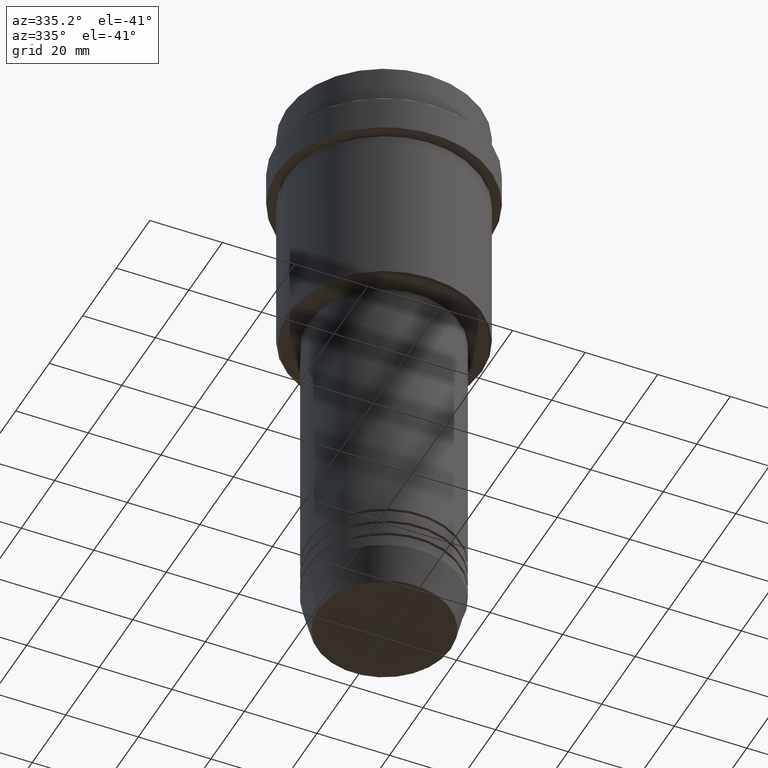
[diagram: clean part render]
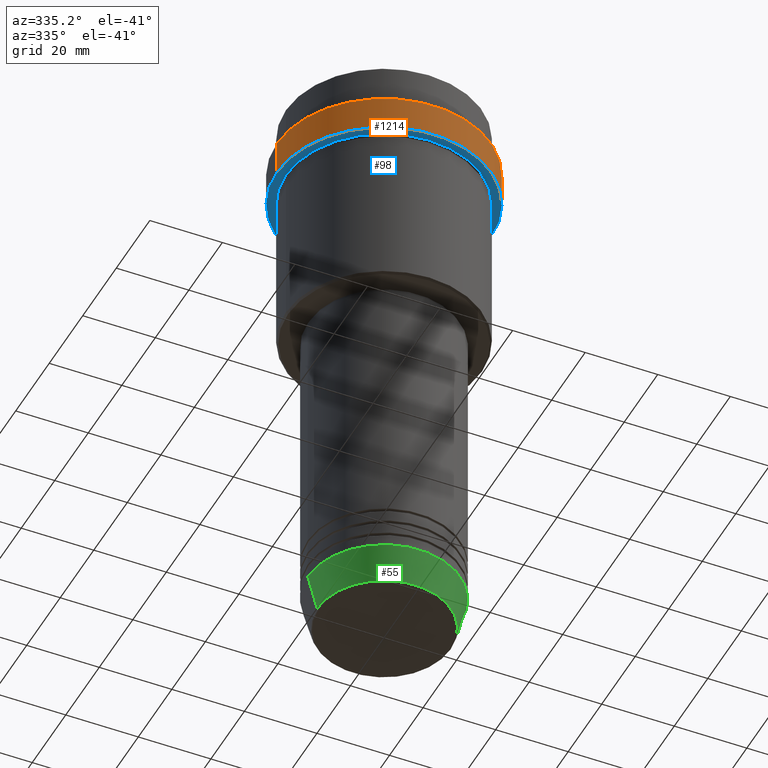
[diagram: same view with three faces highlighted in distinct colors, each labeled with its STEP entity id]
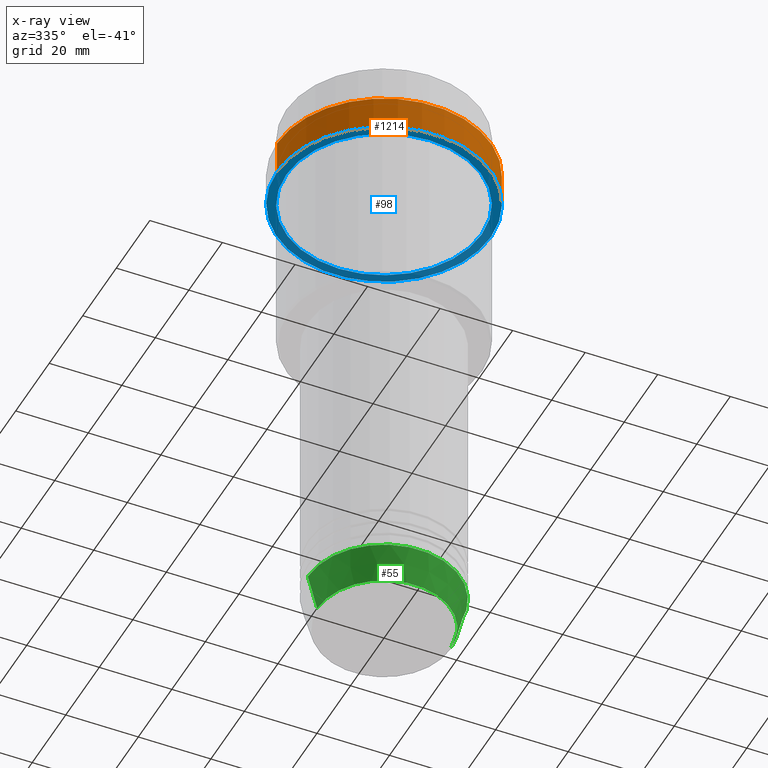
[diagram: x-ray of the same camera — body ghosted, the three highlighted faces saturated]
A machine part, auxiliary view with three faces highlighted in distinct colors.
The next image is the same camera in x-ray (body ghosted, the three faces saturated) — at least one of them is partly hidden behind the body in this view.
Their STEP definitions:

[orange] entity #1214 — the highlighted cylindrical surface (partial cylindrical patch) has radius 29.5 mm, axis along (-0, -0, 1).
#58 = CARTESIAN_POINT ( 'NONE',  ( -29.49999999999999645, 3.612708057484690815E-15, -21.99999999999999289 ) ) ;
#59 = CARTESIAN_POINT ( 'NONE',  ( 0.000000000000000000, 0.000000000000000000, -12.49999999999996270 ) ) ;
#72 = EDGE_CURVE ( 'NONE', #704, #559, #1209, .T. ) ;
#119 = EDGE_LOOP ( 'NONE', ( #254, #943, #577, #272 ) ) ;
#132 = DIRECTION ( 'NONE',  ( -0.000000000000000000, -0.000000000000000000, 1.000000000000000000 ) ) ;
#143 = EDGE_CURVE ( 'NONE', #704, #655, #265, .T. ) ;
#156 = CARTESIAN_POINT ( 'NONE',  ( 0.000000000000000000, 0.000000000000000000, -21.99999999999999289 ) ) ;
#177 = EDGE_CURVE ( 'NONE', #1090, #655, #432, .T. ) ;
#254 = ORIENTED_EDGE ( 'NONE', *, *, #143, .F. ) ;
#265 = LINE ( 'NONE', #1085, #1089 ) ;
#272 = ORIENTED_EDGE ( 'NONE', *, *, #177, .T. ) ;
#293 = DIRECTION ( 'NONE',  ( -0.000000000000000000, -0.000000000000000000, 1.000000000000000000 ) ) ;
#339 = DIRECTION ( 'NONE',  ( 1.000000000000000000, 0.000000000000000000, 0.000000000000000000 ) ) ;
#386 = DIRECTION ( 'NONE',  ( -0.000000000000000000, -0.000000000000000000, 1.000000000000000000 ) ) ;
#432 = CIRCLE ( 'NONE', #1311, 29.50000000000000000 ) ;
#549 = VECTOR ( 'NONE', #293, 1000.000000000000000 ) ;
#559 = VERTEX_POINT ( 'NONE', #654 ) ;
#577 = ORIENTED_EDGE ( 'NONE', *, *, #822, .T. ) ;
#592 = AXIS2_PLACEMENT_3D ( 'NONE', #156, #132, #339 ) ;
#597 = CARTESIAN_POINT ( 'NONE',  ( -29.50000000000000000, 3.612708057484691604E-15, -12.49999999999996270 ) ) ;
#618 = LINE ( 'NONE', #1278, #549 ) ;
#654 = CARTESIAN_POINT ( 'NONE',  ( 29.49999999999999645, 0.000000000000000000, -21.99999999999999289 ) ) ;
#655 = VERTEX_POINT ( 'NONE', #597 ) ;
#704 = VERTEX_POINT ( 'NONE', #58 ) ;
#717 = DIRECTION ( 'NONE',  ( -0.000000000000000000, -0.000000000000000000, 1.000000000000000000 ) ) ;
#736 = FACE_OUTER_BOUND ( 'NONE', #119, .T. ) ;
#822 = EDGE_CURVE ( 'NONE', #559, #1090, #618, .T. ) ;
#826 = DIRECTION ( 'NONE',  ( 0.000000000000000000, 0.000000000000000000, -1.000000000000000000 ) ) ;
#905 = AXIS2_PLACEMENT_3D ( 'NONE', #1173, #717, #1405 ) ;
#909 = CARTESIAN_POINT ( 'NONE',  ( 29.50000000000000000, 0.000000000000000000, -12.49999999999996270 ) ) ;
#943 = ORIENTED_EDGE ( 'NONE', *, *, #72, .T. ) ;
#1085 = CARTESIAN_POINT ( 'NONE',  ( -29.50000000000000000, 3.612708057484691604E-15, 0.000000000000000000 ) ) ;
#1089 = VECTOR ( 'NONE', #386, 1000.000000000000000 ) ;
#1090 = VERTEX_POINT ( 'NONE', #909 ) ;
#1173 = CARTESIAN_POINT ( 'NONE',  ( 0.000000000000000000, 0.000000000000000000, 0.000000000000000000 ) ) ;
#1209 = CIRCLE ( 'NONE', #592, 29.49999999999999645 ) ;
#1214 = ADVANCED_FACE ( 'NONE', ( #736 ), #1283, .T. ) ;
#1278 = CARTESIAN_POINT ( 'NONE',  ( 29.50000000000000000, 0.000000000000000000, 0.000000000000000000 ) ) ;
#1283 = CYLINDRICAL_SURFACE ( 'NONE', #905, 29.50000000000000000 ) ;
#1311 = AXIS2_PLACEMENT_3D ( 'NONE', #59, #826, #1364 ) ;
#1364 = DIRECTION ( 'NONE',  ( 1.000000000000000000, 0.000000000000000000, 0.000000000000000000 ) ) ;
#1405 = DIRECTION ( 'NONE',  ( 1.000000000000000000, 0.000000000000000000, 0.000000000000000000 ) ) ;

[blue] entity #98 — the highlighted planar face has unit normal (0, 0, -1).
#58 = CARTESIAN_POINT ( 'NONE',  ( -29.49999999999999645, 3.612708057484690815E-15, -21.99999999999999289 ) ) ;
#72 = EDGE_CURVE ( 'NONE', #704, #559, #1209, .T. ) ;
#89 = ORIENTED_EDGE ( 'NONE', *, *, #1362, .F. ) ;
#90 = CARTESIAN_POINT ( 'NONE',  ( -26.99999999999999645, 0.000000000000000000, -21.99999999999999289 ) ) ;
#98 = ADVANCED_FACE ( 'NONE', ( #471, #356 ), #465, .T. ) ;
#132 = DIRECTION ( 'NONE',  ( -0.000000000000000000, -0.000000000000000000, 1.000000000000000000 ) ) ;
#156 = CARTESIAN_POINT ( 'NONE',  ( 0.000000000000000000, 0.000000000000000000, -21.99999999999999289 ) ) ;
#168 = AXIS2_PLACEMENT_3D ( 'NONE', #1358, #1140, #1157 ) ;
#174 = AXIS2_PLACEMENT_3D ( 'NONE', #459, #429, #1195 ) ;
#284 = EDGE_CURVE ( 'NONE', #863, #1227, #477, .T. ) ;
#327 = CARTESIAN_POINT ( 'NONE',  ( 0.000000000000000000, 0.000000000000000000, -21.99999999999999289 ) ) ;
#339 = DIRECTION ( 'NONE',  ( 1.000000000000000000, 0.000000000000000000, 0.000000000000000000 ) ) ;
#356 = FACE_OUTER_BOUND ( 'NONE', #1080, .T. ) ;
#429 = DIRECTION ( 'NONE',  ( -0.000000000000000000, -0.000000000000000000, 1.000000000000000000 ) ) ;
#459 = CARTESIAN_POINT ( 'NONE',  ( 0.000000000000000000, 0.000000000000000000, -21.99999999999999289 ) ) ;
#465 = PLANE ( 'NONE',  #1182 ) ;
#471 = FACE_BOUND ( 'NONE', #1176, .T. ) ;
#477 = CIRCLE ( 'NONE', #168, 26.99999999999999645 ) ;
#559 = VERTEX_POINT ( 'NONE', #654 ) ;
#592 = AXIS2_PLACEMENT_3D ( 'NONE', #156, #132, #339 ) ;
#654 = CARTESIAN_POINT ( 'NONE',  ( 29.49999999999999645, 0.000000000000000000, -21.99999999999999289 ) ) ;
#656 = DIRECTION ( 'NONE',  ( 1.000000000000000000, 0.000000000000000000, 0.000000000000000000 ) ) ;
#675 = DIRECTION ( 'NONE',  ( 0.000000000000000000, 0.000000000000000000, -1.000000000000000000 ) ) ;
#704 = VERTEX_POINT ( 'NONE', #58 ) ;
#759 = DIRECTION ( 'NONE',  ( -0.000000000000000000, -0.000000000000000000, 1.000000000000000000 ) ) ;
#782 = CARTESIAN_POINT ( 'NONE',  ( 0.000000000000000000, 29.49999999999999645, -21.99999999999999289 ) ) ;
#863 = VERTEX_POINT ( 'NONE', #1178 ) ;
#897 = DIRECTION ( 'NONE',  ( -1.000000000000000000, 0.000000000000000000, -0.000000000000000000 ) ) ;
#906 = ORIENTED_EDGE ( 'NONE', *, *, #72, .F. ) ;
#998 = ORIENTED_EDGE ( 'NONE', *, *, #1384, .T. ) ;
#1080 = EDGE_LOOP ( 'NONE', ( #89, #906 ) ) ;
#1140 = DIRECTION ( 'NONE',  ( -0.000000000000000000, -0.000000000000000000, 1.000000000000000000 ) ) ;
#1157 = DIRECTION ( 'NONE',  ( -1.000000000000000000, 0.000000000000000000, 0.000000000000000000 ) ) ;
#1176 = EDGE_LOOP ( 'NONE', ( #998, #1406 ) ) ;
#1178 = CARTESIAN_POINT ( 'NONE',  ( 26.99999999999999645, 3.306546357697853339E-15, -21.99999999999999289 ) ) ;
#1182 = AXIS2_PLACEMENT_3D ( 'NONE', #782, #675, #897 ) ;
#1195 = DIRECTION ( 'NONE',  ( -1.000000000000000000, 0.000000000000000000, 0.000000000000000000 ) ) ;
#1209 = CIRCLE ( 'NONE', #592, 29.49999999999999645 ) ;
#1227 = VERTEX_POINT ( 'NONE', #90 ) ;
#1290 = CIRCLE ( 'NONE', #1315, 29.49999999999999645 ) ;
#1315 = AXIS2_PLACEMENT_3D ( 'NONE', #327, #759, #656 ) ;
#1357 = CIRCLE ( 'NONE', #174, 26.99999999999999645 ) ;
#1358 = CARTESIAN_POINT ( 'NONE',  ( 0.000000000000000000, 0.000000000000000000, -21.99999999999999289 ) ) ;
#1362 = EDGE_CURVE ( 'NONE', #559, #704, #1290, .T. ) ;
#1384 = EDGE_CURVE ( 'NONE', #1227, #863, #1357, .T. ) ;
#1406 = ORIENTED_EDGE ( 'NONE', *, *, #284, .T. ) ;

[green] entity #55 — the highlighted conical surface has half-angle 15 deg.
#52 = EDGE_CURVE ( 'NONE', #903, #747, #1324, .T. ) ;
#55 = ADVANCED_FACE ( 'NONE', ( #146 ), #476, .T. ) ;
#92 = AXIS2_PLACEMENT_3D ( 'NONE', #777, #974, #989 ) ;
#146 = FACE_OUTER_BOUND ( 'NONE', #1243, .T. ) ;
#215 = AXIS2_PLACEMENT_3D ( 'NONE', #1292, #421, #1413 ) ;
#298 = VECTOR ( 'NONE', #1329, 1000.000000000000000 ) ;
#321 = CARTESIAN_POINT ( 'NONE',  ( 0.000000000000000000, 0.000000000000000000, -162.6294095225512422 ) ) ;
#323 = EDGE_CURVE ( 'NONE', #626, #903, #967, .T. ) ;
#337 = CARTESIAN_POINT ( 'NONE',  ( 18.41980749484381974, 0.000000000000000000, -162.6294095225512422 ) ) ;
#403 = ORIENTED_EDGE ( 'NONE', *, *, #52, .T. ) ;
#421 = DIRECTION ( 'NONE',  ( -0.000000000000000000, -0.000000000000000000, 1.000000000000000000 ) ) ;
#455 = CARTESIAN_POINT ( 'NONE',  ( 21.00000000000000000, 0.000000000000000000, -153.0000000000000000 ) ) ;
#476 = CONICAL_SURFACE ( 'NONE', #92, 21.00000000000000000, 0.2617993877991505181 ) ;
#626 = VERTEX_POINT ( 'NONE', #921 ) ;
#747 = VERTEX_POINT ( 'NONE', #1262 ) ;
#777 = CARTESIAN_POINT ( 'NONE',  ( 0.000000000000000000, 0.000000000000000000, -153.0000000000000000 ) ) ;
#785 = DIRECTION ( 'NONE',  ( -0.2588190451025217942, 3.169619151431777884E-17, 0.9659258262890679791 ) ) ;
#794 = CIRCLE ( 'NONE', #215, 21.00000000000000000 ) ;
#803 = EDGE_CURVE ( 'NONE', #1048, #747, #794, .T. ) ;
#877 = LINE ( 'NONE', #1215, #1403 ) ;
#903 = VERTEX_POINT ( 'NONE', #337 ) ;
#921 = CARTESIAN_POINT ( 'NONE',  ( -18.41980749484381974, 2.413767053578266669E-15, -162.6294095225512422 ) ) ;
#960 = EDGE_CURVE ( 'NONE', #626, #1048, #877, .T. ) ;
#961 = CARTESIAN_POINT ( 'NONE',  ( -21.00000000000000000, 2.571758278209441661E-15, -153.0000000000000000 ) ) ;
#963 = DIRECTION ( 'NONE',  ( 1.000000000000000000, 0.000000000000000000, 0.000000000000000000 ) ) ;
#967 = CIRCLE ( 'NONE', #1330, 18.41980749484381974 ) ;
#974 = DIRECTION ( 'NONE',  ( -0.000000000000000000, -0.000000000000000000, 1.000000000000000000 ) ) ;
#989 = DIRECTION ( 'NONE',  ( 1.000000000000000000, 0.000000000000000000, 0.000000000000000000 ) ) ;
#1002 = ORIENTED_EDGE ( 'NONE', *, *, #323, .T. ) ;
#1048 = VERTEX_POINT ( 'NONE', #961 ) ;
#1215 = CARTESIAN_POINT ( 'NONE',  ( -21.00000000000000000, 2.571758278209441661E-15, -153.0000000000000000 ) ) ;
#1243 = EDGE_LOOP ( 'NONE', ( #1317, #1002, #403, #1321 ) ) ;
#1262 = CARTESIAN_POINT ( 'NONE',  ( 21.00000000000000000, 0.000000000000000000, -153.0000000000000000 ) ) ;
#1292 = CARTESIAN_POINT ( 'NONE',  ( 0.000000000000000000, 0.000000000000000000, -153.0000000000000000 ) ) ;
#1308 = DIRECTION ( 'NONE',  ( -0.000000000000000000, -0.000000000000000000, 1.000000000000000000 ) ) ;
#1317 = ORIENTED_EDGE ( 'NONE', *, *, #960, .F. ) ;
#1321 = ORIENTED_EDGE ( 'NONE', *, *, #803, .F. ) ;
#1324 = LINE ( 'NONE', #455, #298 ) ;
#1329 = DIRECTION ( 'NONE',  ( 0.2588190451025217942, 0.000000000000000000, 0.9659258262890679791 ) ) ;
#1330 = AXIS2_PLACEMENT_3D ( 'NONE', #321, #1308, #963 ) ;
#1403 = VECTOR ( 'NONE', #785, 1000.000000000000000 ) ;
#1413 = DIRECTION ( 'NONE',  ( 1.000000000000000000, 0.000000000000000000, 0.000000000000000000 ) ) ;